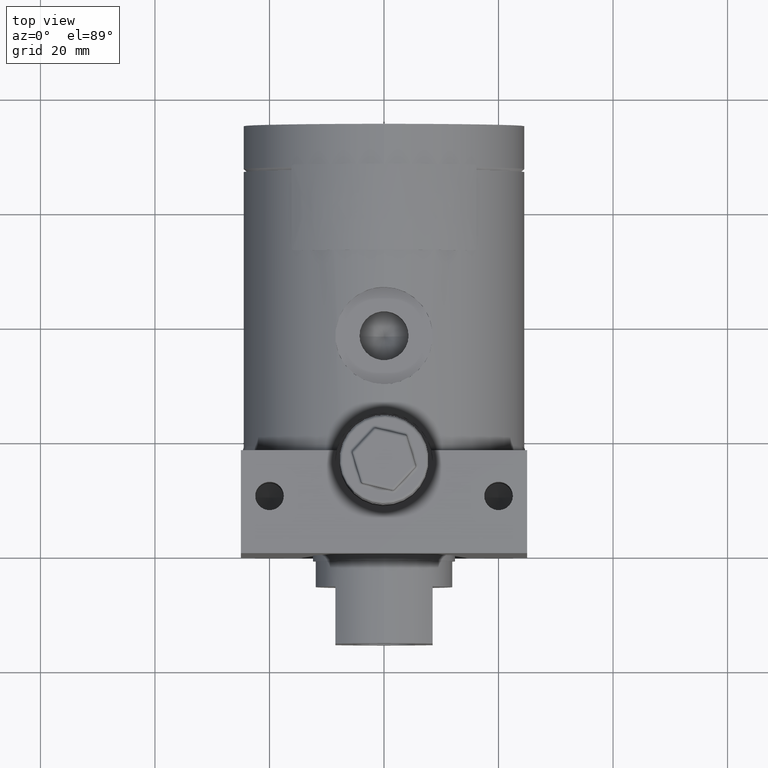
[diagram: clean part render]
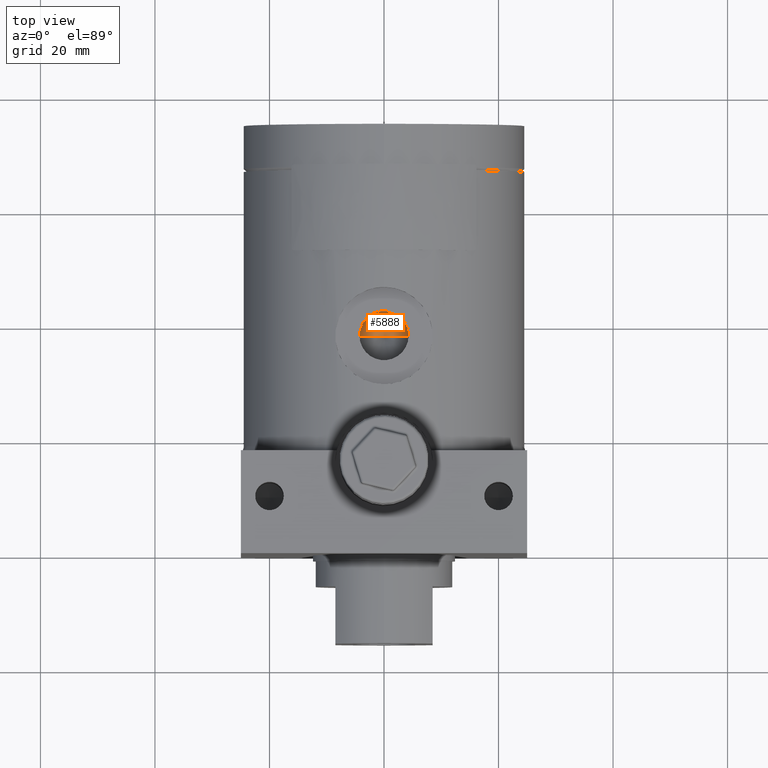
[diagram: same view with one face highlighted and labeled with its STEP entity id]
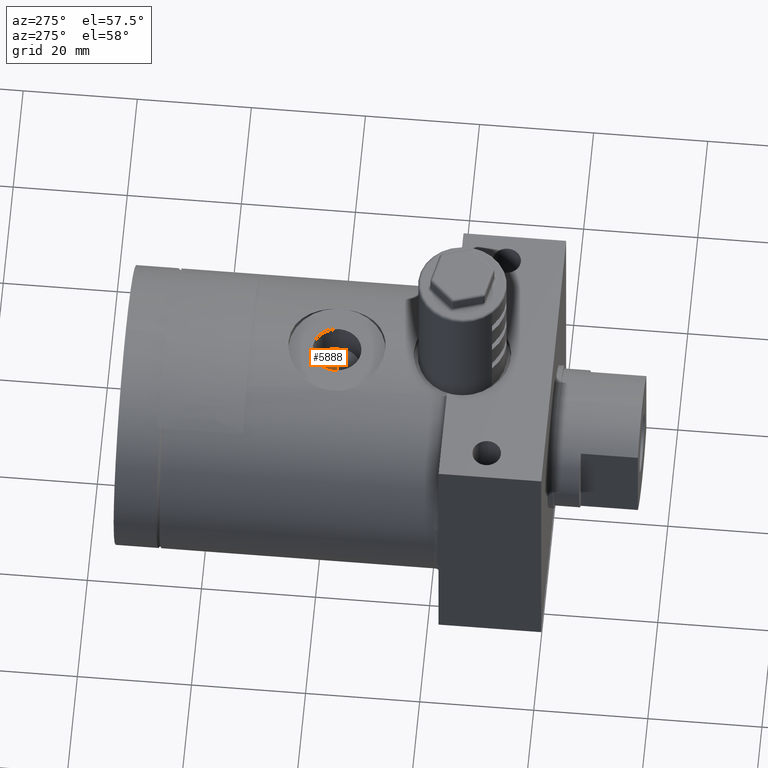
[diagram: same view with one face highlighted and labeled with its STEP entity id]
A machine part, top view. The second image highlights one B-rep face of the part: STEP entity #5888.
A second angle (auxiliary view) of the same face is appended — the face is thin or edge-on in the first view.
In plain terms, the highlighted conical surface has half-angle 59 deg.
Its self-contained STEP definition (entity closure, byte-faithful):
#518 = FACE_OUTER_BOUND ( 'NONE', #9841, .T. ) ;
#1486 = DIRECTION ( 'NONE',  ( 1.000000000000000000, 0.0000000000000000000, 0.0000000000000000000 ) ) ;
#1636 = CIRCLE ( 'NONE', #3468, 4.283000000000000400 ) ;
#1715 = EDGE_CURVE ( 'NONE', #7303, #6945, #6159, .T. ) ;
#3468 = AXIS2_PLACEMENT_3D ( 'NONE', #3950, #3987, #1486 ) ;
#3719 = ORIENTED_EDGE ( 'NONE', *, *, #10571, .T. ) ;
#3950 = CARTESIAN_POINT ( 'NONE',  ( 0.0000000000000000000, 38.00000000000000000, 16.77900000000000000 ) ) ;
#3987 = DIRECTION ( 'NONE',  ( 0.0000000000000000000, 0.0000000000000000000, 1.000000000000000000 ) ) ;
#4687 = CARTESIAN_POINT ( 'NONE',  ( 4.283000000000000400, 38.00000000000000000, 16.77900000000000000 ) ) ;
#5832 = DIRECTION ( 'NONE',  ( -0.8571673007021118900, 1.049727191138618200E-016, 0.5150380749100549300 ) ) ;
#5888 = ADVANCED_FACE ( 'NONE', ( #518 ), #9212, .F. ) ;
#5889 = LINE ( 'NONE', #9899, #9024 ) ;
#5891 = DIRECTION ( 'NONE',  ( 1.000000000000000000, 0.0000000000000000000, 0.0000000000000000000 ) ) ;
#6159 = LINE ( 'NONE', #6974, #6403 ) ;
#6403 = VECTOR ( 'NONE', #8678, 999.9999999999998900 ) ;
#6686 = AXIS2_PLACEMENT_3D ( 'NONE', #10891, #9326, #5891 ) ;
#6945 = VERTEX_POINT ( 'NONE', #4687 ) ;
#6974 = CARTESIAN_POINT ( 'NONE',  ( 4.283000000000000400, 38.00000000000000000, 16.77900000000000000 ) ) ;
#7303 = VERTEX_POINT ( 'NONE', #9825 ) ;
#7558 = CARTESIAN_POINT ( 'NONE',  ( -4.283000000000000400, 38.00000000000000000, 16.77900000000000000 ) ) ;
#8661 = ORIENTED_EDGE ( 'NONE', *, *, #9254, .F. ) ;
#8678 = DIRECTION ( 'NONE',  ( 0.8571673007021118900, 0.0000000000000000000, 0.5150380749100549300 ) ) ;
#8738 = VERTEX_POINT ( 'NONE', #7558 ) ;
#9024 = VECTOR ( 'NONE', #5832, 999.9999999999998900 ) ;
#9212 = CONICAL_SURFACE ( 'NONE', #6686, 4.283000000000000400, 1.029744258676653600 ) ;
#9254 = EDGE_CURVE ( 'NONE', #7303, #8738, #5889, .T. ) ;
#9326 = DIRECTION ( 'NONE',  ( 0.0000000000000000000, 0.0000000000000000000, 1.000000000000000000 ) ) ;
#9825 = CARTESIAN_POINT ( 'NONE',  ( -2.521421873418519600E-015, 38.00000000000000000, 14.20551396870496100 ) ) ;
#9841 = EDGE_LOOP ( 'NONE', ( #8661, #10395, #3719 ) ) ;
#9899 = CARTESIAN_POINT ( 'NONE',  ( -4.283000000000000400, 38.00000000000000000, 16.77900000000000000 ) ) ;
#10395 = ORIENTED_EDGE ( 'NONE', *, *, #1715, .T. ) ;
#10571 = EDGE_CURVE ( 'NONE', #6945, #8738, #1636, .T. ) ;
#10891 = CARTESIAN_POINT ( 'NONE',  ( 0.0000000000000000000, 38.00000000000000000, 16.77900000000000000 ) ) ;